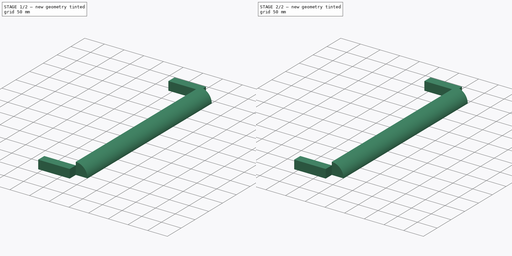
[diagram: build sequence overview — one tinted view per stage of 2, left to right]
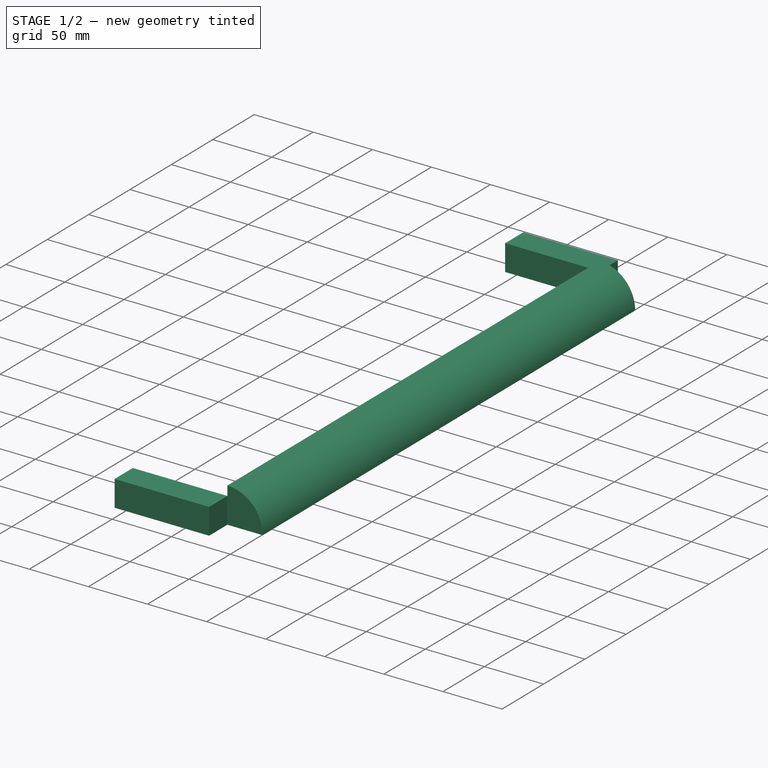
[diagram: stage 1 of 2 — iso view after this stage's code; geometry added in this stage tinted green]
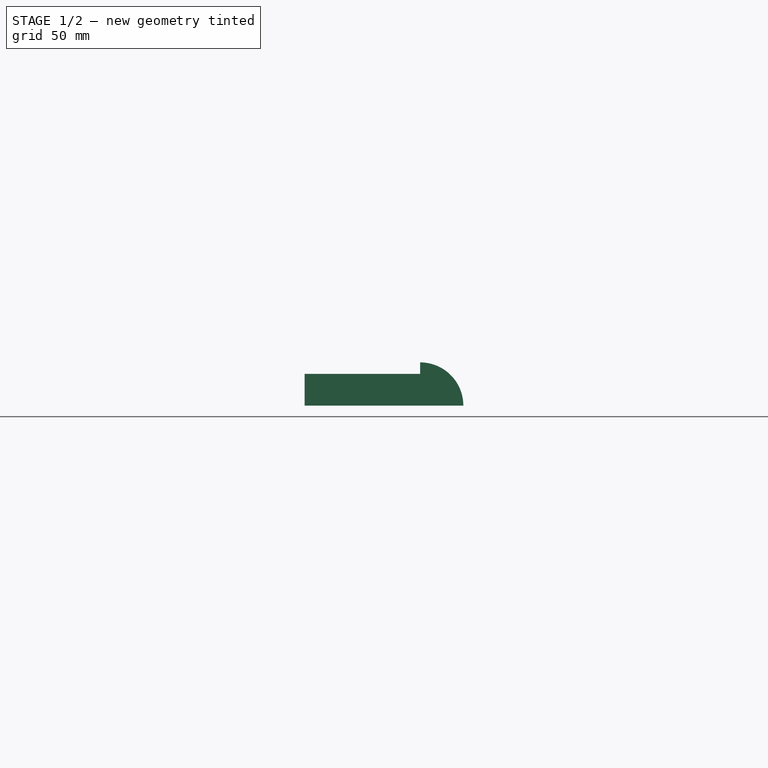
[diagram: stage 1 of 2 — front view after this stage's code; geometry added in this stage tinted green]
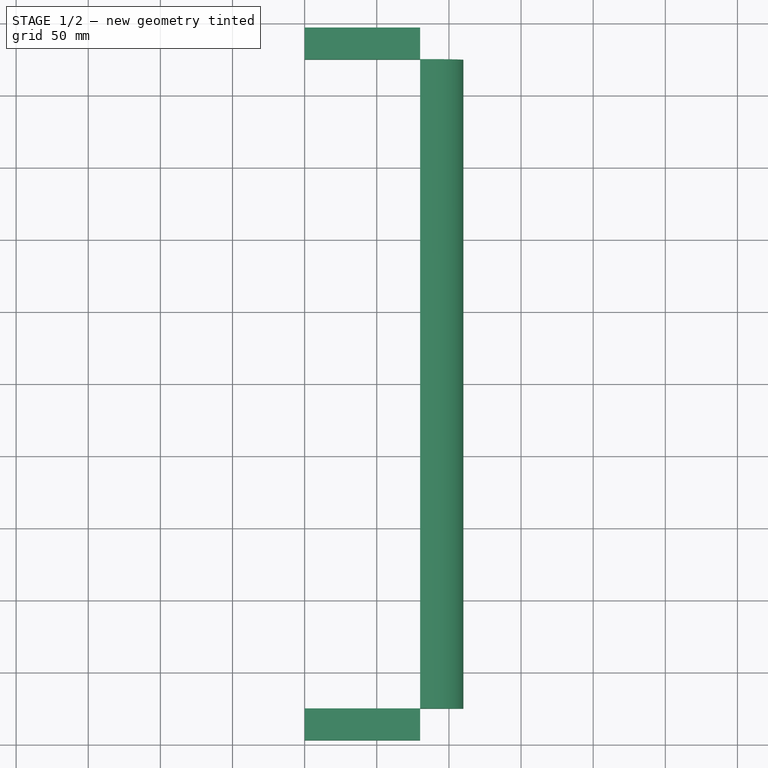
[diagram: stage 1 of 2 — top view after this stage's code; geometry added in this stage tinted green]
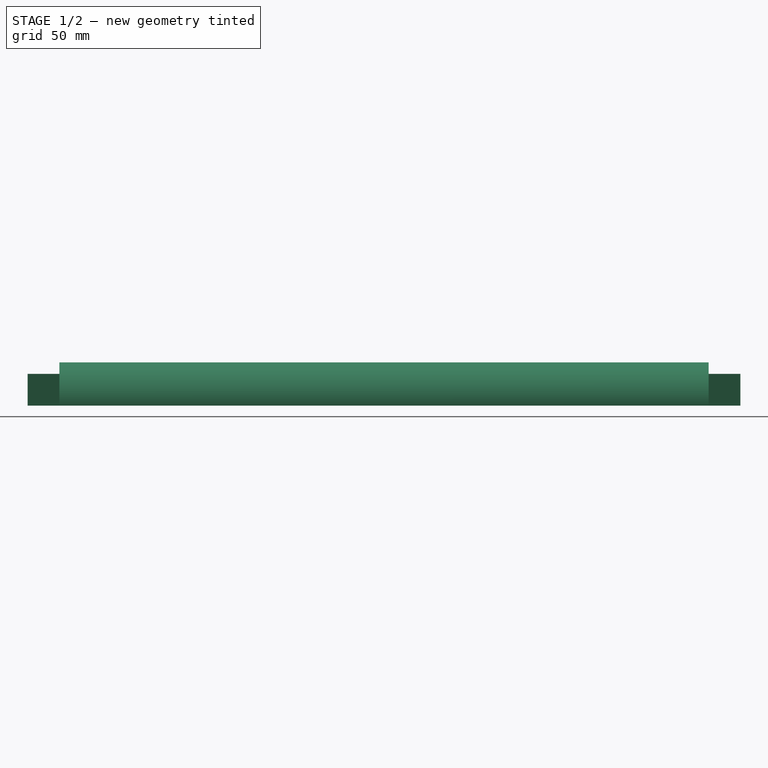
[diagram: stage 1 of 2 — right view after this stage's code; geometry added in this stage tinted green]
FCSTD DOCUMENT  (FreeCAD 0.16R6703 (Git))
Label: lunar_base_border_rack
License: Public Domain
LicenseURL: http://en.wikipedia.org/wiki/Public_domain
objects: Sketcher::SketchObject×2, PartDesign::Pad×2, Part::Fuse×1
note: 7 computed .brp shape members not serialized (recipe doc carries the construction recipe); baked Part::Feature solids carry a one-line shape summary decoded from their .brp

FEATURE [Sketcher::SketchObject] Sketch
  Placement = pos=(0,0,0) rot=(-1,0,0;4.71239rad)
  sketch-geometry (4):
    g0: ArcOfCircle CenterX=80 CenterY=0 CenterZ=0 NormalX=0 NormalY=0 NormalZ=1 Radius=30 StartAngle=0 EndAngle=1.5708
    g1: LineSegment StartX=80 StartY=30 StartZ=0 EndX=80 EndY=0 EndZ=0
    g2: LineSegment StartX=80 StartY=0 StartZ=0 EndX=110 EndY=0 EndZ=0
    g3: LineSegment [constr] StartX=0 StartY=0 StartZ=0 EndX=80 EndY=0 EndZ=0
  constraints (11):
    c: Coincident(g1,g0)
    c: Coincident(g1,g0)
    c: Coincident(g2,g0)
    c: Coincident(g0,g2)
    c: Vertical(g1)
    c: Horizontal(g2)
    c: DistanceX(g2,g2) = 30
    c: Coincident(g3,g-1)
    c: Coincident(g3,g0)
    c: Horizontal(g3)
    c: DistanceX(g3,g3) = 80
FEATURE [PartDesign::Pad] Pad
  Length = 225
  Length2 = 225
  Placement = pos=(0,0,0) rot=(-1,0,0;4.71239rad)
  Sketch = -> Sketch
  Type = 4
FEATURE [Sketcher::SketchObject] Sketch002
  sketch-geometry (9):
    g0: LineSegment StartX=0 StartY=225 StartZ=0 EndX=80 EndY=225 EndZ=0
    g1: LineSegment StartX=80 StartY=225 StartZ=0 EndX=80 EndY=247 EndZ=0
    g2: LineSegment StartX=80 StartY=247 StartZ=0 EndX=0 EndY=247 EndZ=0
    g3: LineSegment StartX=0 StartY=247 StartZ=0 EndX=0 EndY=225 EndZ=0
    g4: LineSegment StartX=0 StartY=-247 StartZ=0 EndX=80 EndY=-247 EndZ=0
    g5: LineSegment StartX=80 StartY=-247 StartZ=0 EndX=80 EndY=-225 EndZ=0
    g6: LineSegment StartX=80 StartY=-225 StartZ=0 EndX=0 EndY=-225 EndZ=0
    g7: LineSegment StartX=0 StartY=-225 StartZ=0 EndX=0 EndY=-247 EndZ=0
    g8: LineSegment [constr] StartX=80 StartY=247 StartZ=0 EndX=80 EndY=-247 EndZ=0
  constraints (25):
    c: Coincident(g0,g1)
    c: Coincident(g1,g2)
    c: Coincident(g2,g3)
    c: Coincident(g3,g0)
    c: Horizontal(g0)
    c: Horizontal(g2)
    c: Vertical(g1)
    c: Vertical(g3)
    c: Coincident(g4,g5)
    c: Coincident(g5,g6)
    c: Coincident(g6,g7)
    c: Coincident(g7,g4)
    c: Horizontal(g4)
    c: Horizontal(g6)
    c: Vertical(g5)
    c: Vertical(g7)
    c: Coincident(g8,g1)
    c: Coincident(g8,g4)
    c: Vertical(g8)
    c: DistanceY(g8,g8) = 494
    c: Equal(g7,g3)
    c: Equal(g0,g6)
    c: DistanceY(g3,g3) = 22
    c: DistanceX(g2,g2) = 80
    c: Symmetric(g0,g6,g-1)
FEATURE [PartDesign::Pad] Pad001
  Length = 22
  Length2 = 100
  Sketch = -> Sketch002
  Type = 0
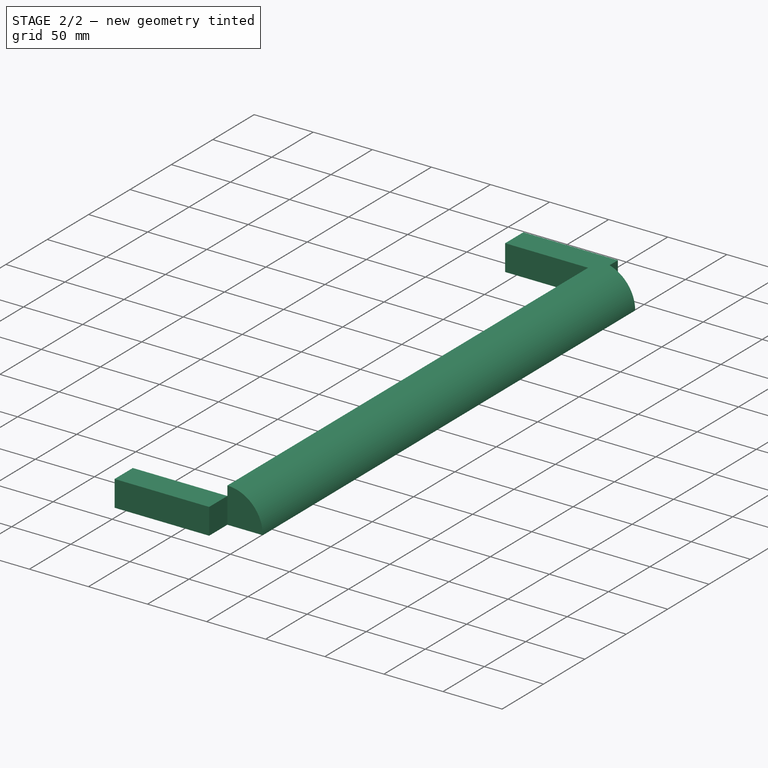
[diagram: stage 2 of 2 — iso view after this stage's code; geometry added in this stage tinted green]
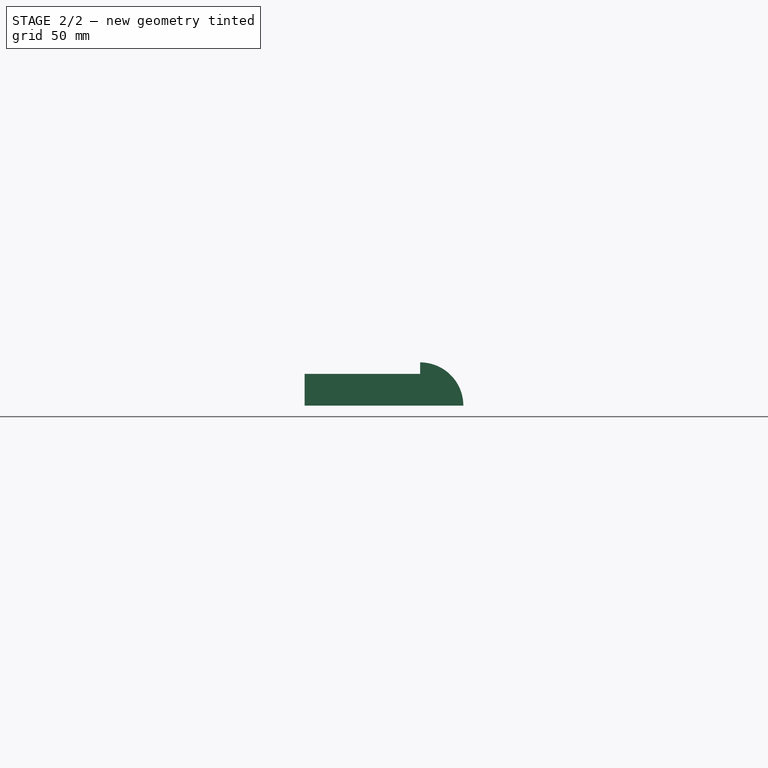
[diagram: stage 2 of 2 — front view after this stage's code; geometry added in this stage tinted green]
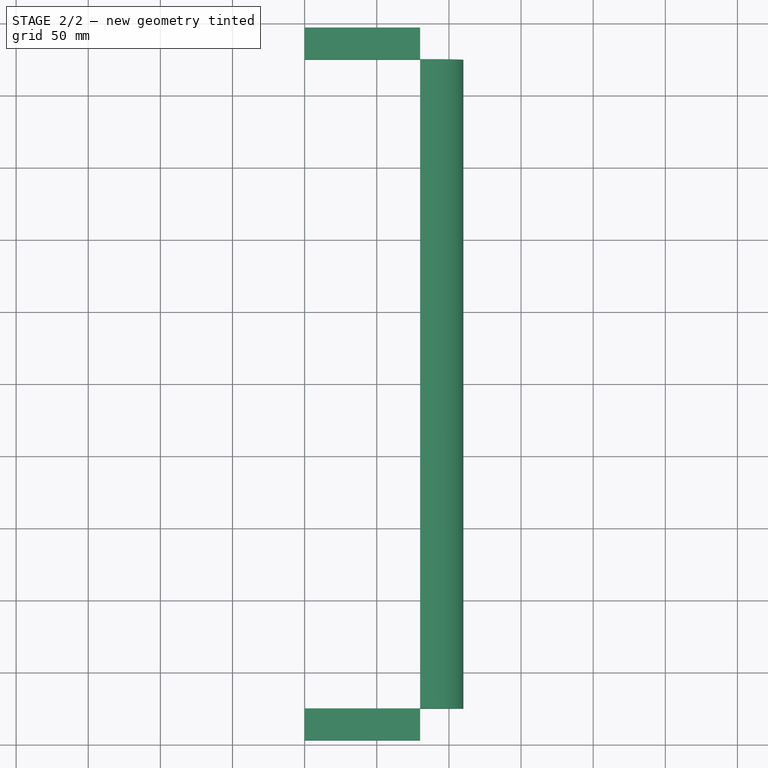
[diagram: stage 2 of 2 — top view after this stage's code; geometry added in this stage tinted green]
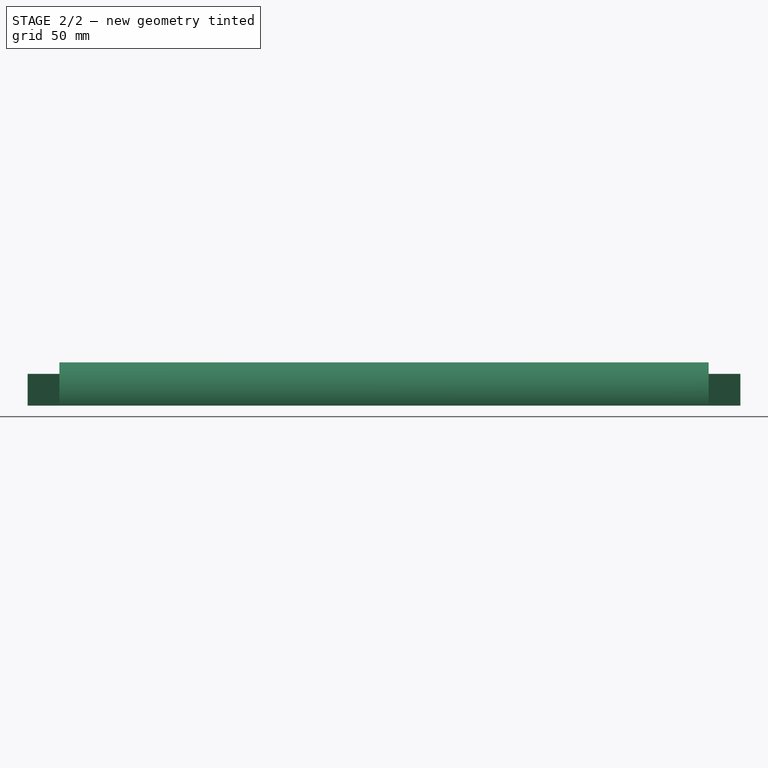
[diagram: stage 2 of 2 — right view after this stage's code; geometry added in this stage tinted green]
FEATURE [Part::Fuse] Fusion
  Base = -> Pad
  Tool = -> Pad001
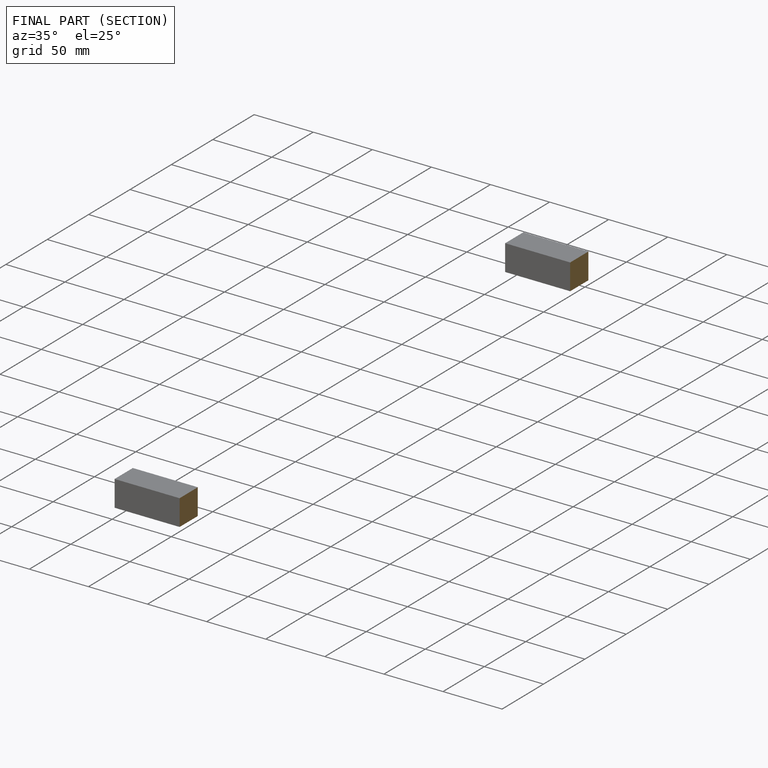
[diagram: finished part — half-section view (interior)]
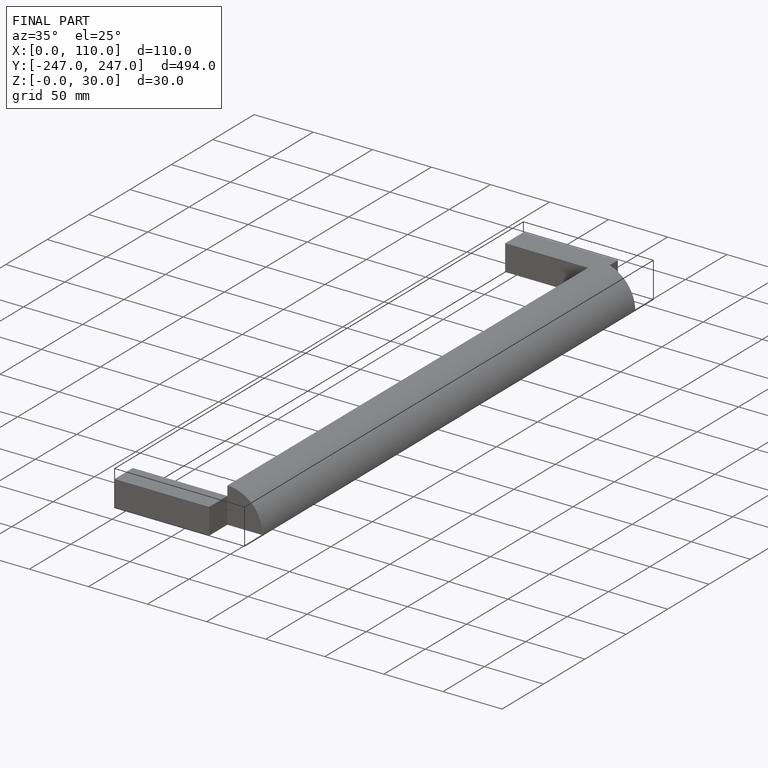
[diagram: finished part — iso view with bounding-box wireframe]
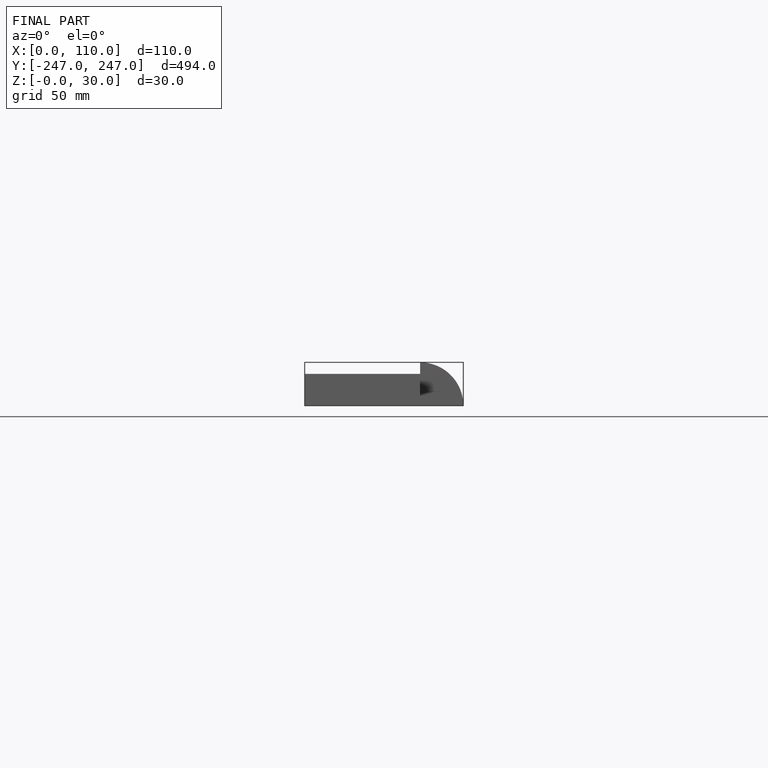
[diagram: finished part — front view with bounding-box wireframe]
